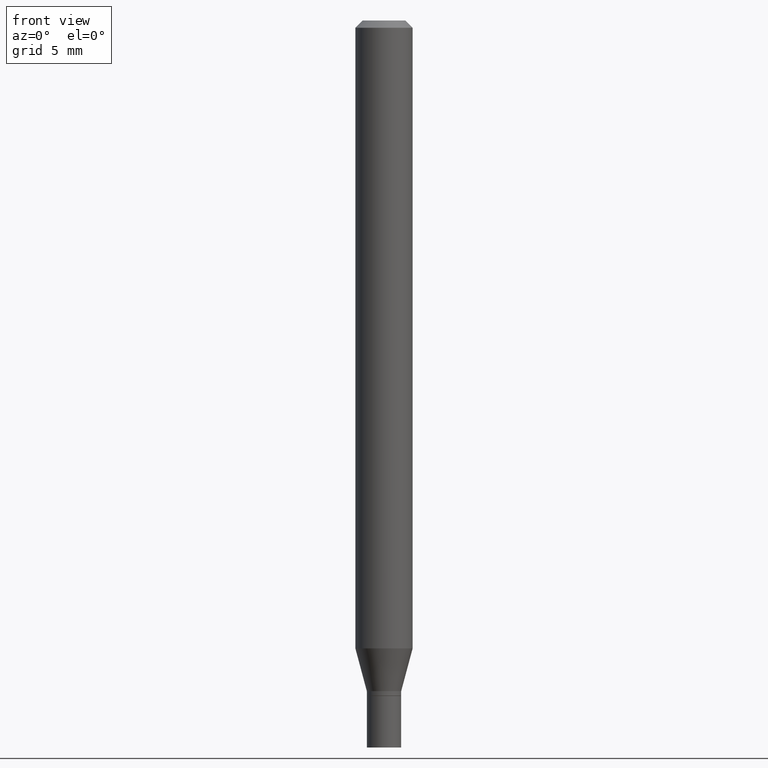
[diagram: clean part render]
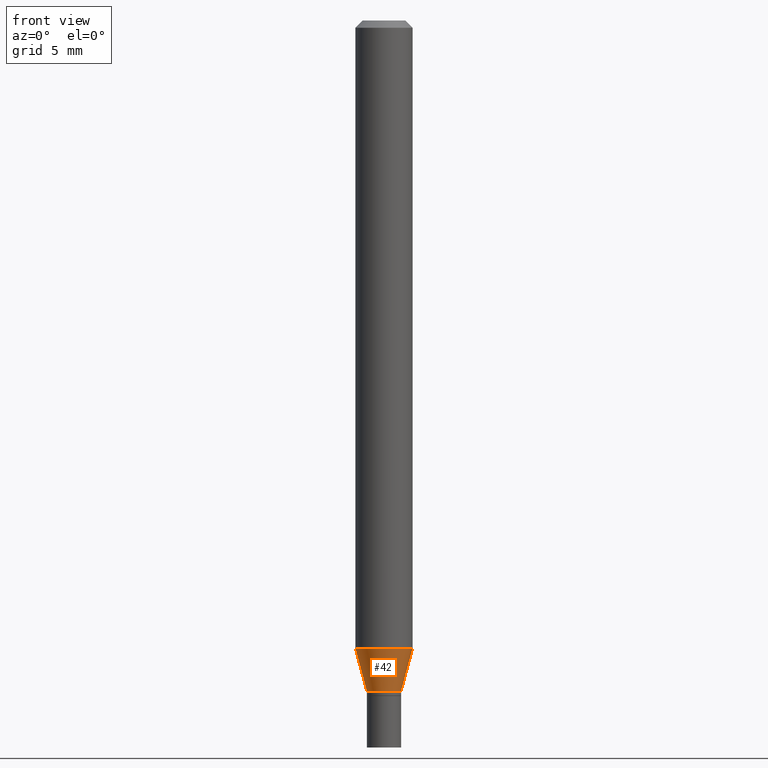
[diagram: same view with one face highlighted and labeled with its STEP entity id]
A machine part, front view. The second image highlights one B-rep face of the part: STEP entity #42.
In plain terms, the highlighted conical surface has half-angle 15 deg.
Its self-contained STEP definition (entity closure, byte-faithful):
#2 = CARTESIAN_POINT ( 'NONE',  ( -0.05904999999999999832, -4.104070139385231647E-15, -1.295623600941375297 ) ) ;
#27 = ORIENTED_EDGE ( 'NONE', *, *, #208, .F. ) ;
#41 = CARTESIAN_POINT ( 'NONE',  ( 3.383795187118373530E-29, -4.831162728557261458E-15, -1.383700000000000152 ) ) ;
#42 = ADVANCED_FACE ( 'NONE', ( #261 ), #343, .T. ) ;
#43 = DIRECTION ( 'NONE',  ( -2.445468806185136597E-29, 3.491481338843145583E-15, 1.000000000000000000 ) ) ;
#69 = CARTESIAN_POINT ( 'NONE',  ( 0.03545000000000019663, -5.078708755481240920E-15, -1.383700000000000152 ) ) ;
#71 = ORIENTED_EDGE ( 'NONE', *, *, #449, .T. ) ;
#79 = CARTESIAN_POINT ( 'NONE',  ( 3.383795187118373530E-29, -4.831162728557261458E-15, -1.383700000000000152 ) ) ;
#91 = EDGE_CURVE ( 'NONE', #384, #454, #193, .T. ) ;
#107 = CARTESIAN_POINT ( 'NONE',  ( -0.03545000000000019663, -4.341672734057767677E-15, -1.383700000000000152 ) ) ;
#108 = EDGE_CURVE ( 'NONE', #384, #323, #192, .T. ) ;
#123 = DIRECTION ( 'NONE',  ( -2.445468806185136597E-29, 3.491481338843145583E-15, 1.000000000000000000 ) ) ;
#126 = DIRECTION ( 'NONE',  ( -2.445468806185136597E-29, 3.491481338843145583E-15, 1.000000000000000000 ) ) ;
#163 = CIRCLE ( 'NONE', #236, 0.05904999999999999832 ) ;
#172 = VECTOR ( 'NONE', #290, 39.37007874015748143 ) ;
#184 = ORIENTED_EDGE ( 'NONE', *, *, #91, .T. ) ;
#189 = DIRECTION ( 'NONE',  ( -0.2588190451025209615, 5.211531920934547097E-15, 0.9659258262890682012 ) ) ;
#192 = LINE ( 'NONE', #221, #351 ) ;
#193 = CIRCLE ( 'NONE', #451, 0.03545000000000019663 ) ;
#194 = DIRECTION ( 'NONE',  ( 1.000000000000000000, -6.982962677686270655E-15, 0.000000000000000000 ) ) ;
#208 = EDGE_CURVE ( 'NONE', #323, #447, #163, .T. ) ;
#221 = CARTESIAN_POINT ( 'NONE',  ( -0.03545000000000019663, -4.579275328730304496E-15, -1.383700000000000152 ) ) ;
#236 = AXIS2_PLACEMENT_3D ( 'NONE', #444, #126, #376 ) ;
#258 = DIRECTION ( 'NONE',  ( 1.000000000000000000, -6.982962677686270655E-15, 0.000000000000000000 ) ) ;
#261 = FACE_OUTER_BOUND ( 'NONE', #347, .T. ) ;
#285 = CARTESIAN_POINT ( 'NONE',  ( 0.05904999999999999832, -4.935989570968945271E-15, -1.295623600941375297 ) ) ;
#290 = DIRECTION ( 'NONE',  ( 0.2588190451025209615, 1.565188264969624926E-15, 0.9659258262890682012 ) ) ;
#323 = VERTEX_POINT ( 'NONE', #2 ) ;
#343 = CONICAL_SURFACE ( 'NONE', #398, 0.03545000000000019663, 0.2617993877991496299 ) ;
#347 = EDGE_LOOP ( 'NONE', ( #425, #184, #71, #27 ) ) ;
#351 = VECTOR ( 'NONE', #189, 39.37007874015748143 ) ;
#376 = DIRECTION ( 'NONE',  ( 1.000000000000000000, -6.982962677686273021E-15, 0.000000000000000000 ) ) ;
#384 = VERTEX_POINT ( 'NONE', #107 ) ;
#395 = CARTESIAN_POINT ( 'NONE',  ( 0.03545000000000019663, -5.078708755481240920E-15, -1.383700000000000152 ) ) ;
#398 = AXIS2_PLACEMENT_3D ( 'NONE', #41, #43, #194 ) ;
#425 = ORIENTED_EDGE ( 'NONE', *, *, #108, .F. ) ;
#444 = CARTESIAN_POINT ( 'NONE',  ( 3.168407100659392834E-29, -4.523645624851571140E-15, -1.295623600941375297 ) ) ;
#447 = VERTEX_POINT ( 'NONE', #285 ) ;
#449 = EDGE_CURVE ( 'NONE', #454, #447, #462, .T. ) ;
#451 = AXIS2_PLACEMENT_3D ( 'NONE', #79, #123, #258 ) ;
#454 = VERTEX_POINT ( 'NONE', #395 ) ;
#462 = LINE ( 'NONE', #69, #172 ) ;